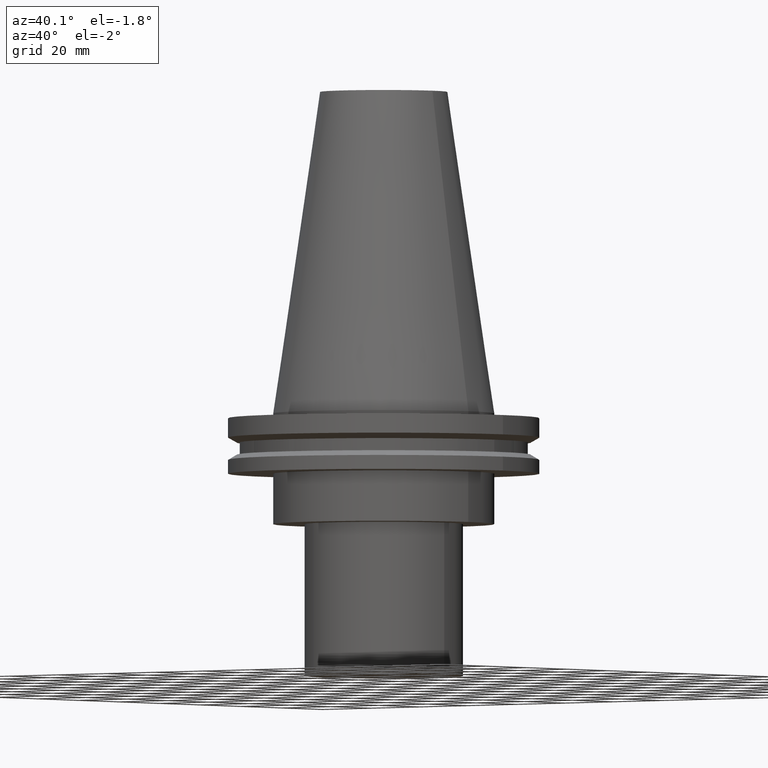
[diagram: clean part render]
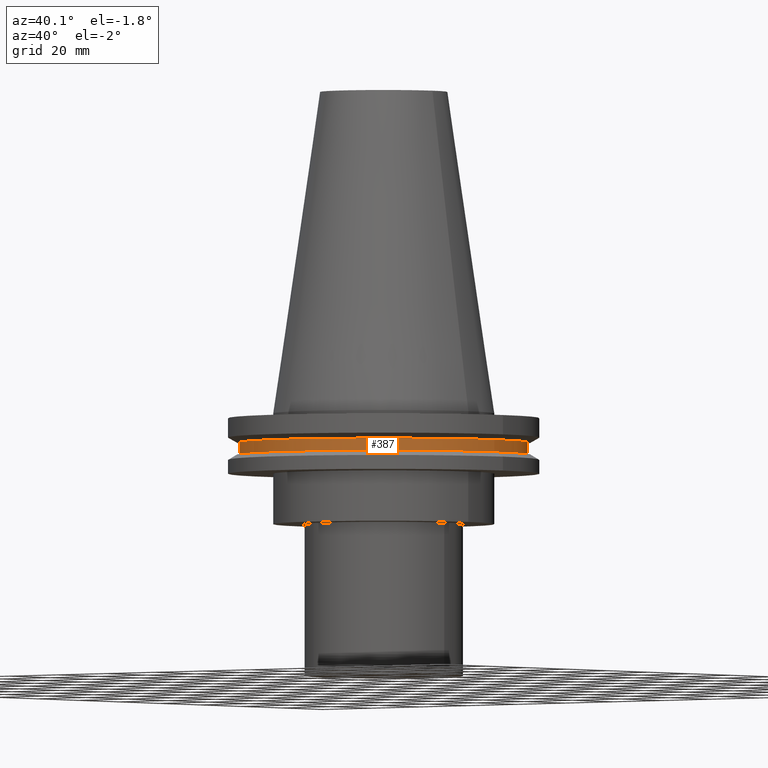
[diagram: same view with one face highlighted and labeled with its STEP entity id]
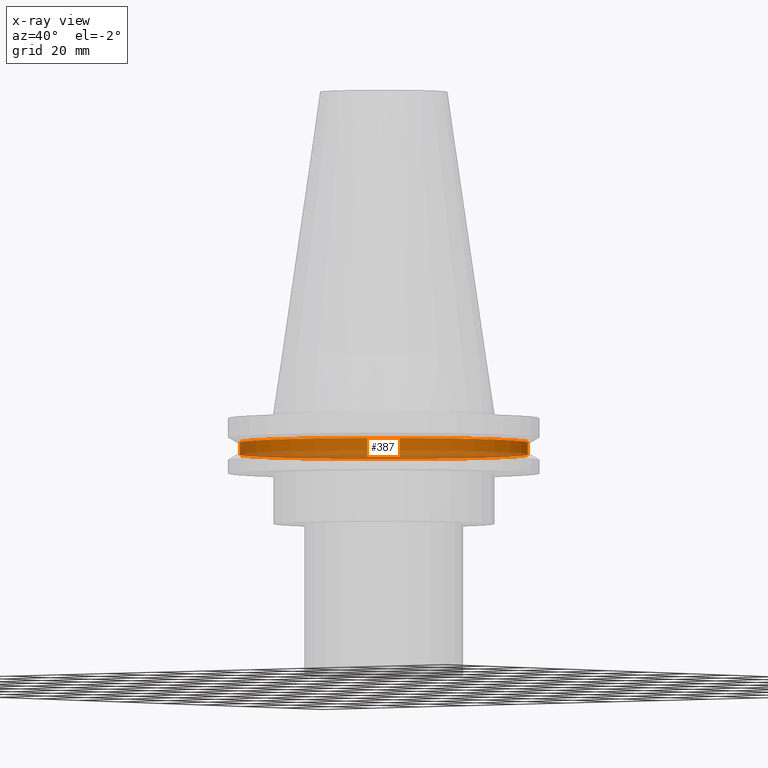
[diagram: x-ray of the same camera — body ghosted, the highlighted face saturated]
A machine part, auxiliary view. The second image highlights one B-rep face of the part: STEP entity #387.
The next image is the same camera in x-ray: the body ghosted, the highlighted face saturated — about 37% of this face is hidden behind the body in this view.
In plain terms, the highlighted cylindrical surface (bore or boss wall) has radius 45.645 mm, axis along (-0, -0, 1).
Its self-contained STEP definition (entity closure, byte-faithful):
#2 = FACE_OUTER_BOUND ( 'NONE', #100, .T. ) ;
#8 = EDGE_CURVE ( 'NONE', #365, #365, #269, .T. ) ;
#37 = CARTESIAN_POINT ( 'NONE',  ( 45.64500000000000313, 0.000000000000000000, -13.05499999999999794 ) ) ;
#40 = VERTEX_POINT ( 'NONE', #37 ) ;
#53 = CYLINDRICAL_SURFACE ( 'NONE', #140, 45.64500000000000313 ) ;
#62 = EDGE_CURVE ( 'NONE', #40, #40, #122, .T. ) ;
#63 = DIRECTION ( 'NONE',  ( 1.000000000000000000, 0.000000000000000000, 0.000000000000000000 ) ) ;
#68 = AXIS2_PLACEMENT_3D ( 'NONE', #319, #345, #63 ) ;
#79 = DIRECTION ( 'NONE',  ( 1.000000000000000000, 0.000000000000000000, 0.000000000000000000 ) ) ;
#100 = EDGE_LOOP ( 'NONE', ( #204 ) ) ;
#112 = DIRECTION ( 'NONE',  ( 1.000000000000000000, 0.000000000000000000, 0.000000000000000000 ) ) ;
#121 = AXIS2_PLACEMENT_3D ( 'NONE', #144, #146, #79 ) ;
#122 = CIRCLE ( 'NONE', #68, 45.64500000000000313 ) ;
#139 = EDGE_LOOP ( 'NONE', ( #327 ) ) ;
#140 = AXIS2_PLACEMENT_3D ( 'NONE', #361, #239, #112 ) ;
#144 = CARTESIAN_POINT ( 'NONE',  ( 0.000000000000000000, 0.000000000000000000, -9.204999999999991189 ) ) ;
#146 = DIRECTION ( 'NONE',  ( -0.000000000000000000, -0.000000000000000000, 1.000000000000000000 ) ) ;
#204 = ORIENTED_EDGE ( 'NONE', *, *, #62, .T. ) ;
#239 = DIRECTION ( 'NONE',  ( -0.000000000000000000, -0.000000000000000000, 1.000000000000000000 ) ) ;
#241 = FACE_OUTER_BOUND ( 'NONE', #139, .T. ) ;
#269 = CIRCLE ( 'NONE', #121, 45.64500000000000313 ) ;
#319 = CARTESIAN_POINT ( 'NONE',  ( 0.000000000000000000, 0.000000000000000000, -13.05499999999999794 ) ) ;
#327 = ORIENTED_EDGE ( 'NONE', *, *, #8, .F. ) ;
#333 = CARTESIAN_POINT ( 'NONE',  ( 45.64500000000000313, 0.000000000000000000, -9.204999999999991189 ) ) ;
#345 = DIRECTION ( 'NONE',  ( -0.000000000000000000, -0.000000000000000000, 1.000000000000000000 ) ) ;
#361 = CARTESIAN_POINT ( 'NONE',  ( 0.000000000000000000, 0.000000000000000000, 101.5999999999999943 ) ) ;
#365 = VERTEX_POINT ( 'NONE', #333 ) ;
#387 = ADVANCED_FACE ( 'NONE', ( #241, #2 ), #53, .T. ) ;